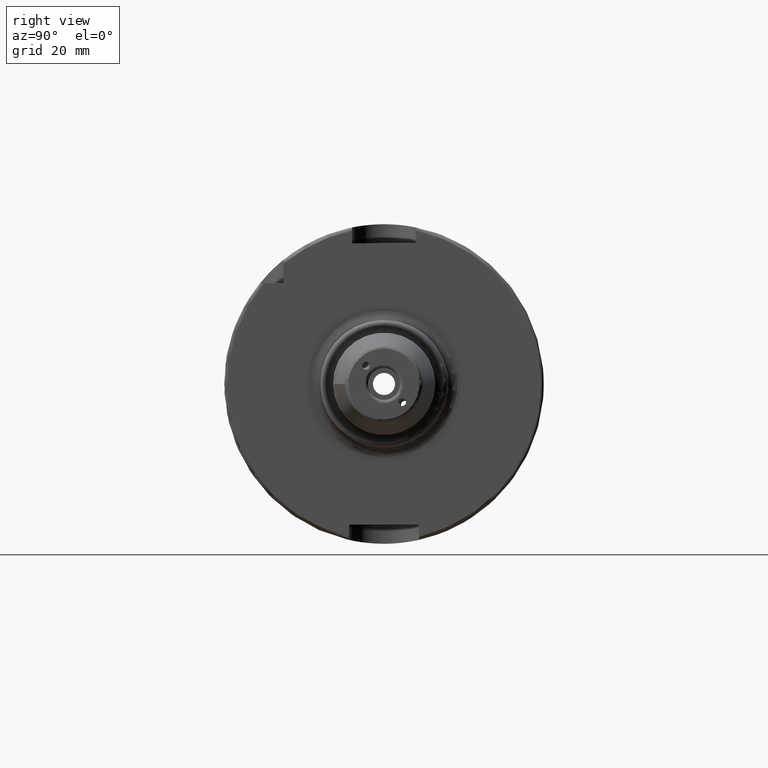
[diagram: clean part render]
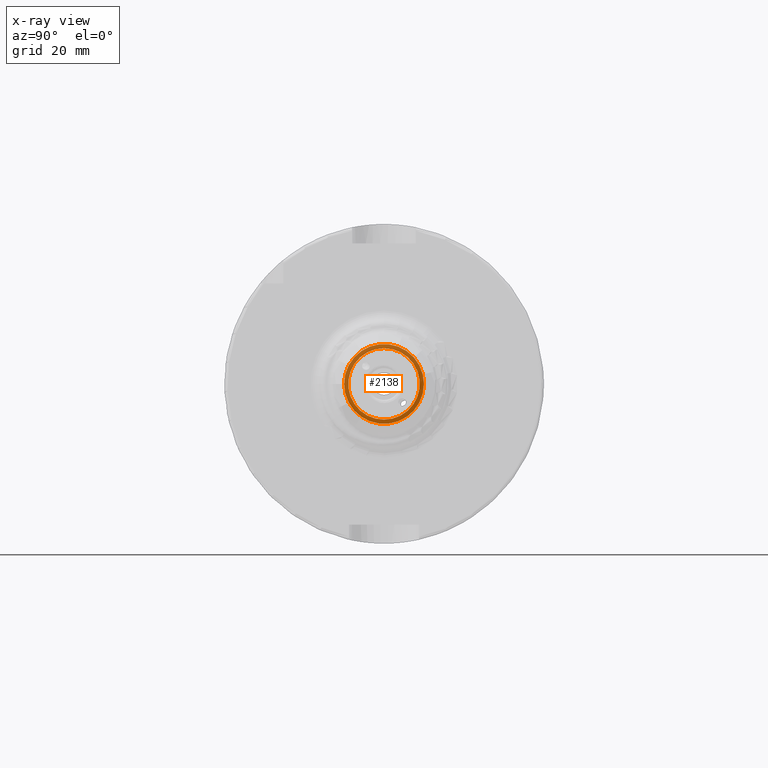
[diagram: x-ray — body ghosted, one internal face saturated and labeled with its STEP entity id]
A machine part, right view, then the same camera in x-ray: the body is ghosted and one INTERNAL B-rep face — a face not visible from any outside direction — is saturated and labeled: STEP entity #2138.
In plain terms, the highlighted planar face has unit normal (-1, 0, 0).
Its self-contained STEP definition (entity closure, byte-faithful):
#95=FACE_BOUND('',#450,.T.);
#131=PLANE('',#2411);
#316=FACE_OUTER_BOUND('',#449,.T.);
#449=EDGE_LOOP('',(#1935));
#450=EDGE_LOOP('',(#1936));
#800=CIRCLE('',#2402,11.188101);
#805=CIRCLE('',#2410,12.5);
#1022=VERTEX_POINT('',#4569);
#1026=VERTEX_POINT('',#4582);
#1331=EDGE_CURVE('',#1022,#1022,#800,.T.);
#1337=EDGE_CURVE('',#1026,#1026,#805,.T.);
#1935=ORIENTED_EDGE('',*,*,#1337,.F.);
#1936=ORIENTED_EDGE('',*,*,#1331,.T.);
#2138=ADVANCED_FACE('',(#316,#95),#131,.F.);
#2402=AXIS2_PLACEMENT_3D('',#4571,#2998,#2999);
#2410=AXIS2_PLACEMENT_3D('',#4584,#3015,#3016);
#2411=AXIS2_PLACEMENT_3D('',#4585,#3017,#3018);
#2998=DIRECTION('center_axis',(-1.,0.,0.));
#2999=DIRECTION('ref_axis',(0.,0.,1.));
#3015=DIRECTION('center_axis',(-1.,0.,0.));
#3016=DIRECTION('ref_axis',(0.,0.,1.));
#3017=DIRECTION('center_axis',(-1.,0.,0.));
#3018=DIRECTION('ref_axis',(0.,0.,1.));
#4569=CARTESIAN_POINT('',(22.5,-1.37014720781873E-15,-11.188101));
#4571=CARTESIAN_POINT('Origin',(22.5,0.,0.));
#4582=CARTESIAN_POINT('',(22.5,-12.5,1.53080849893419E-15));
#4584=CARTESIAN_POINT('Origin',(22.5,0.,0.));
#4585=CARTESIAN_POINT('Origin',(22.5,10.,0.));